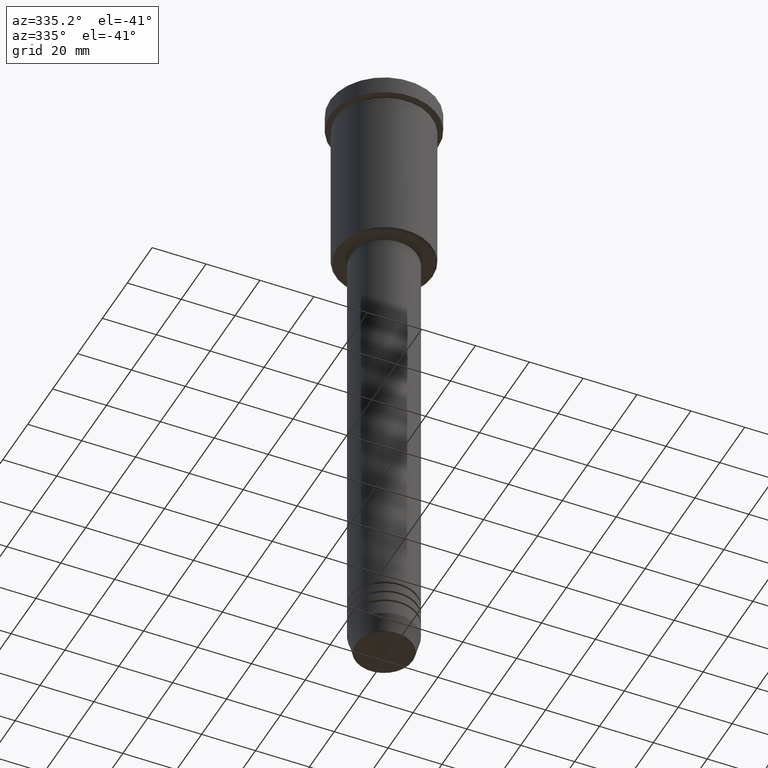
[diagram: clean part render]
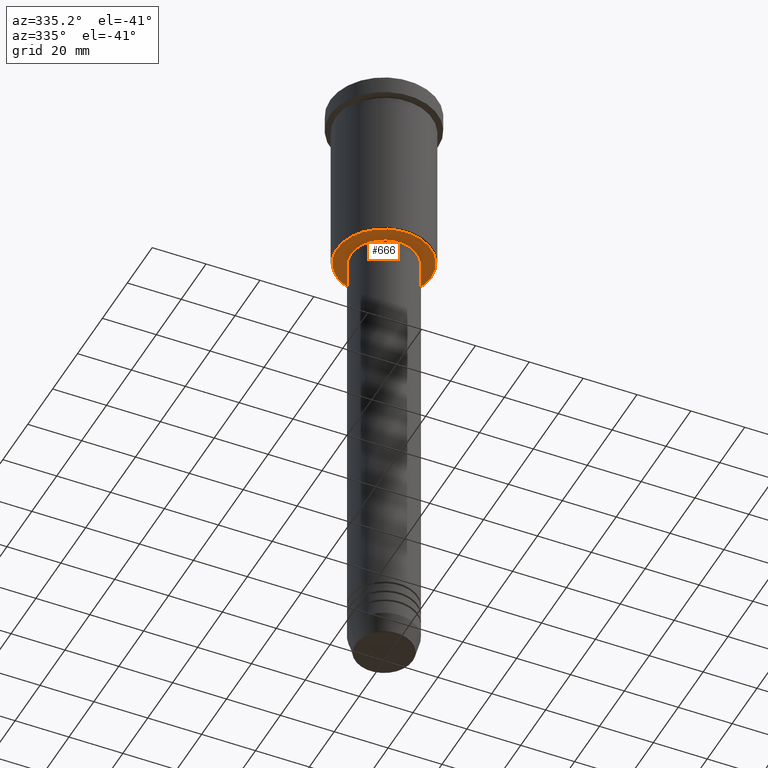
[diagram: same view with one face highlighted and labeled with its STEP entity id]
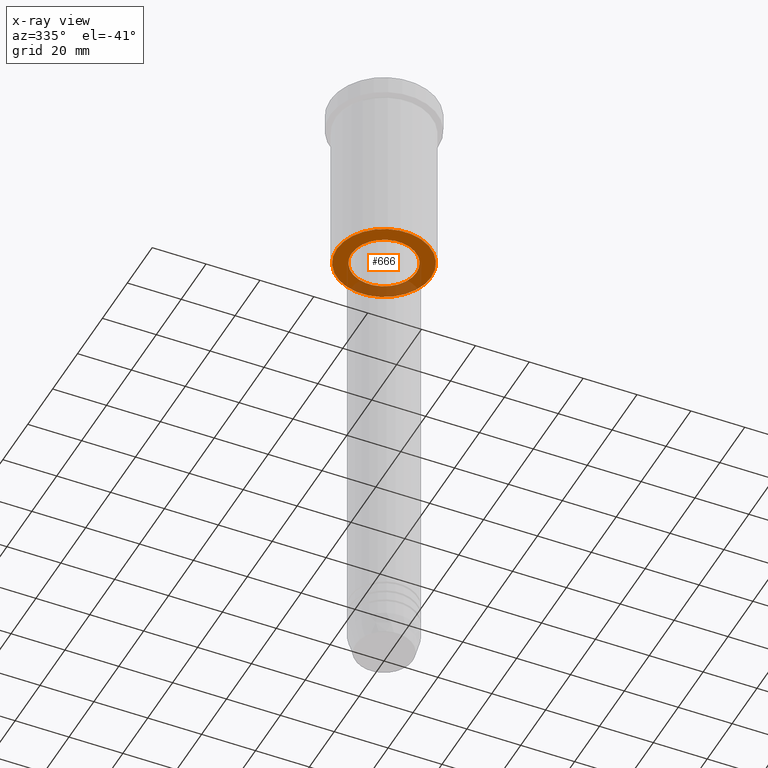
[diagram: x-ray of the same camera — body ghosted, the highlighted face saturated]
A machine part, auxiliary view. The second image highlights one B-rep face of the part: STEP entity #666.
The next image is the same camera in x-ray: the body ghosted, the highlighted face saturated — about 23% of this face is hidden behind the body in this view.
In plain terms, the highlighted planar face has unit normal (0, 0, -1).
Its self-contained STEP definition (entity closure, byte-faithful):
#54 = CARTESIAN_POINT ( 'NONE',  ( 0.000000000000000000, 0.000000000000000000, -66.00000000000000000 ) ) ;
#72 = CARTESIAN_POINT ( 'NONE',  ( 0.000000000000000000, 0.000000000000000000, -66.00000000000000000 ) ) ;
#87 = FACE_OUTER_BOUND ( 'NONE', #192, .T. ) ;
#151 = DIRECTION ( 'NONE',  ( 0.000000000000000000, 0.000000000000000000, -1.000000000000000000 ) ) ;
#154 = CARTESIAN_POINT ( 'NONE',  ( 17.49999999999998934, 0.000000000000000000, -66.00000000000000000 ) ) ;
#164 = VERTEX_POINT ( 'NONE', #154 ) ;
#170 = ORIENTED_EDGE ( 'NONE', *, *, #486, .T. ) ;
#192 = EDGE_LOOP ( 'NONE', ( #910, #170 ) ) ;
#204 = CIRCLE ( 'NONE', #347, 17.49999999999998934 ) ;
#239 = CARTESIAN_POINT ( 'NONE',  ( 0.000000000000000000, 0.000000000000000000, -66.00000000000000000 ) ) ;
#260 = DIRECTION ( 'NONE',  ( -1.000000000000000000, 0.000000000000000000, 0.000000000000000000 ) ) ;
#268 = DIRECTION ( 'NONE',  ( 1.000000000000000000, 0.000000000000000000, 0.000000000000000000 ) ) ;
#291 = EDGE_LOOP ( 'NONE', ( #553, #1119 ) ) ;
#347 = AXIS2_PLACEMENT_3D ( 'NONE', #54, #669, #1157 ) ;
#434 = DIRECTION ( 'NONE',  ( 0.000000000000000000, 0.000000000000000000, -1.000000000000000000 ) ) ;
#435 = AXIS2_PLACEMENT_3D ( 'NONE', #72, #151, #260 ) ;
#450 = PLANE ( 'NONE',  #676 ) ;
#486 = EDGE_CURVE ( 'NONE', #608, #164, #899, .T. ) ;
#518 = AXIS2_PLACEMENT_3D ( 'NONE', #1086, #609, #268 ) ;
#524 = EDGE_CURVE ( 'NONE', #1170, #653, #760, .T. ) ;
#553 = ORIENTED_EDGE ( 'NONE', *, *, #634, .T. ) ;
#577 = AXIS2_PLACEMENT_3D ( 'NONE', #239, #583, #1163 ) ;
#583 = DIRECTION ( 'NONE',  ( -0.000000000000000000, -0.000000000000000000, 1.000000000000000000 ) ) ;
#608 = VERTEX_POINT ( 'NONE', #664 ) ;
#609 = DIRECTION ( 'NONE',  ( -0.000000000000000000, -0.000000000000000000, 1.000000000000000000 ) ) ;
#634 = EDGE_CURVE ( 'NONE', #653, #1170, #979, .T. ) ;
#653 = VERTEX_POINT ( 'NONE', #969 ) ;
#664 = CARTESIAN_POINT ( 'NONE',  ( -17.49999999999998934, 2.173748068486550852E-15, -66.00000000000000000 ) ) ;
#666 = ADVANCED_FACE ( 'NONE', ( #87, #895 ), #450, .T. ) ;
#669 = DIRECTION ( 'NONE',  ( 0.000000000000000000, 0.000000000000000000, -1.000000000000000000 ) ) ;
#676 = AXIS2_PLACEMENT_3D ( 'NONE', #802, #434, #1176 ) ;
#760 = CIRCLE ( 'NONE', #518, 12.00000000000000000 ) ;
#802 = CARTESIAN_POINT ( 'NONE',  ( 0.000000000000000000, 18.00000000000000000, -66.00000000000000000 ) ) ;
#895 = FACE_BOUND ( 'NONE', #291, .T. ) ;
#899 = CIRCLE ( 'NONE', #435, 17.49999999999998934 ) ;
#910 = ORIENTED_EDGE ( 'NONE', *, *, #1134, .T. ) ;
#969 = CARTESIAN_POINT ( 'NONE',  ( 12.00000000000000000, 0.000000000000000000, -66.00000000000000000 ) ) ;
#979 = CIRCLE ( 'NONE', #577, 12.00000000000000000 ) ;
#1086 = CARTESIAN_POINT ( 'NONE',  ( 0.000000000000000000, 0.000000000000000000, -66.00000000000000000 ) ) ;
#1119 = ORIENTED_EDGE ( 'NONE', *, *, #524, .T. ) ;
#1134 = EDGE_CURVE ( 'NONE', #164, #608, #204, .T. ) ;
#1157 = DIRECTION ( 'NONE',  ( -1.000000000000000000, 0.000000000000000000, 0.000000000000000000 ) ) ;
#1162 = CARTESIAN_POINT ( 'NONE',  ( -12.00000000000000000, 1.469576158976823947E-15, -66.00000000000000000 ) ) ;
#1163 = DIRECTION ( 'NONE',  ( 1.000000000000000000, 0.000000000000000000, 0.000000000000000000 ) ) ;
#1170 = VERTEX_POINT ( 'NONE', #1162 ) ;
#1176 = DIRECTION ( 'NONE',  ( -1.000000000000000000, 0.000000000000000000, -0.000000000000000000 ) ) ;